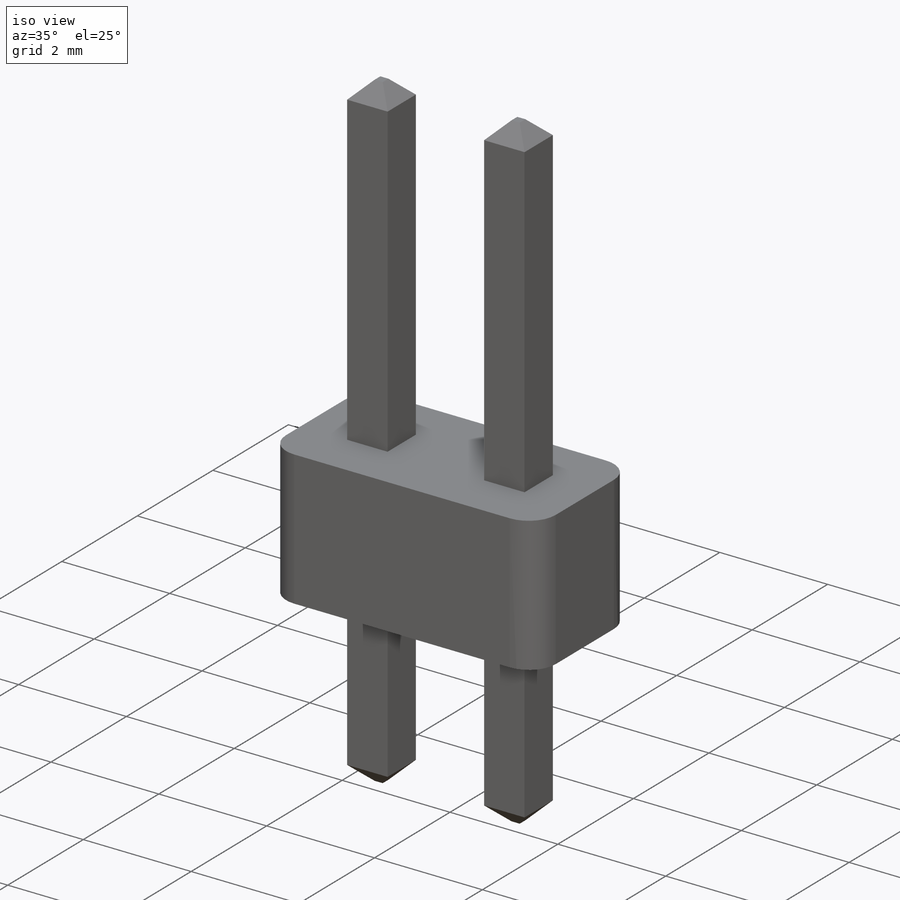
[diagram: iso view]
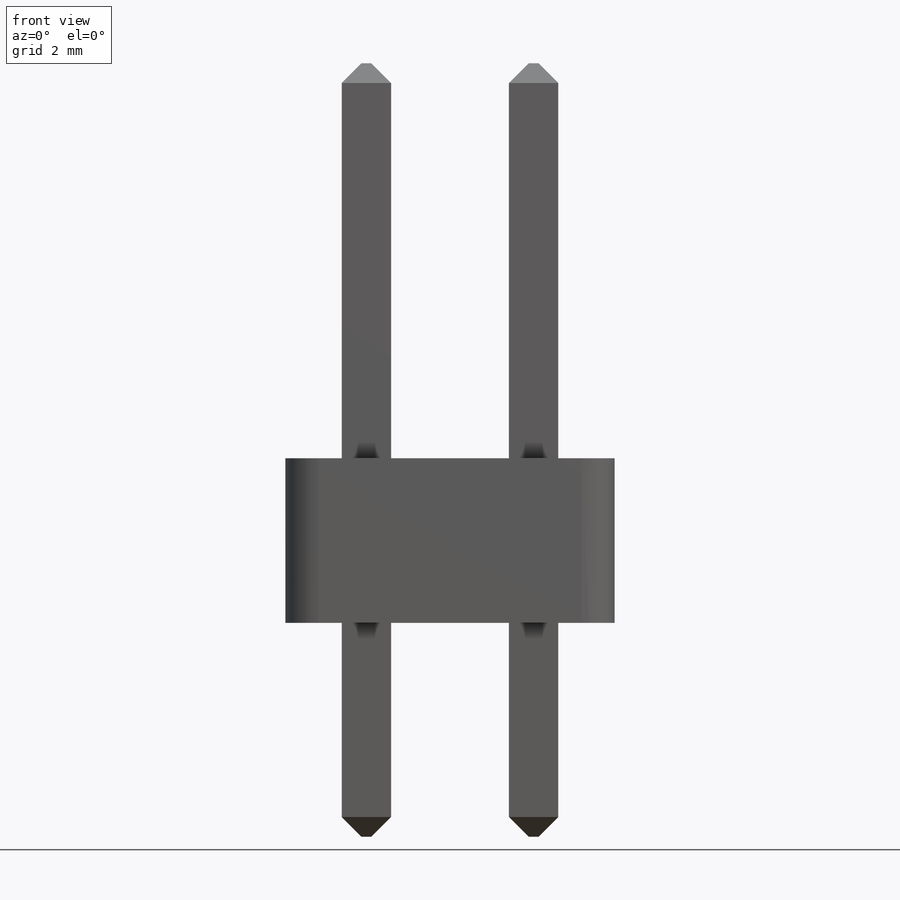
[diagram: front view]
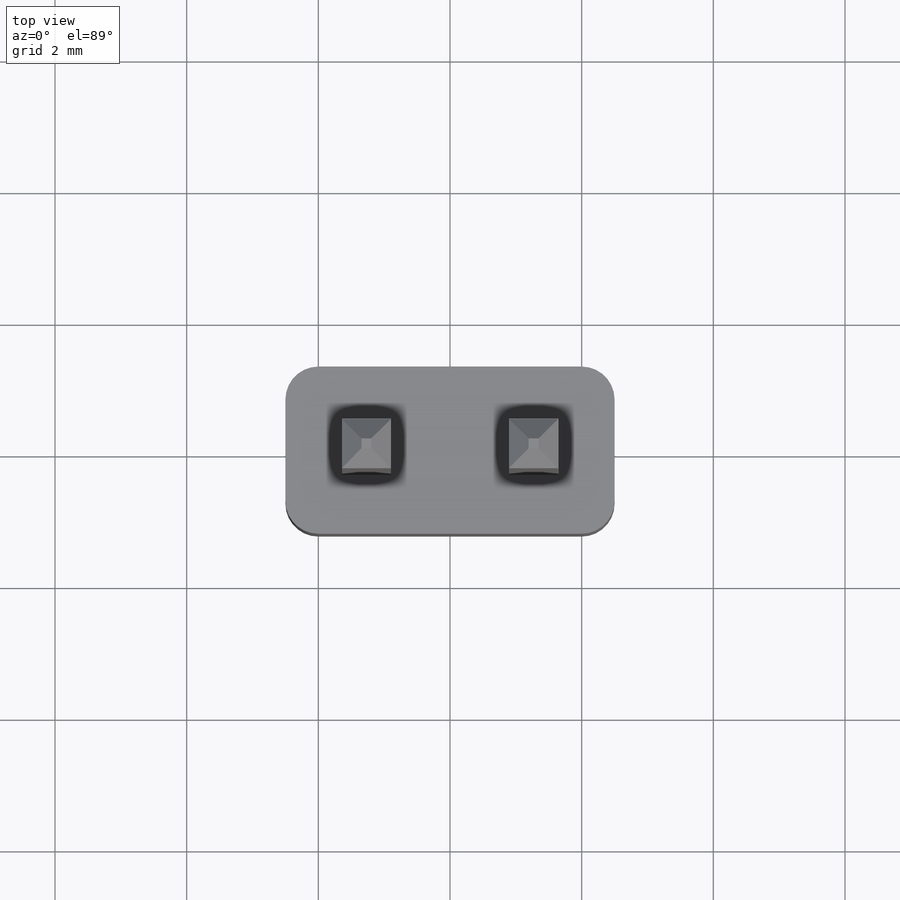
[diagram: top view]
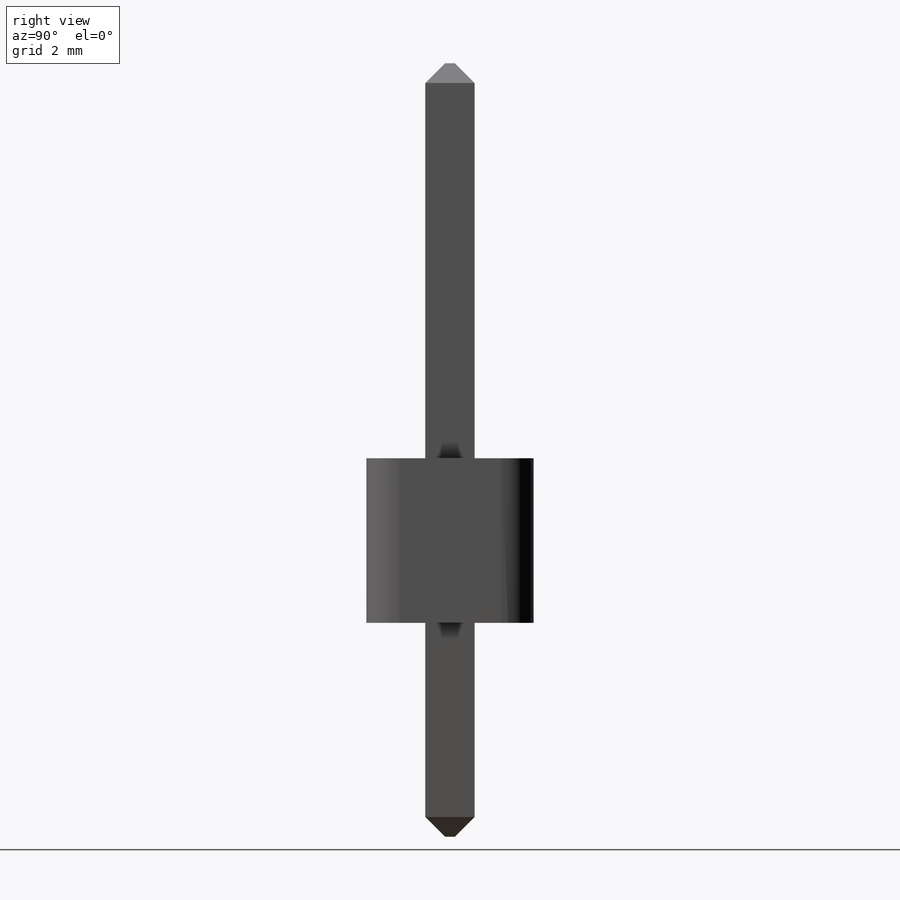
[diagram: right view]
SOLIDWORKS PART (.sldprt)
format: sldprt  version: not decoded by parser v0  size: 188,416 bytes
history: native  units: mm
features: plane x2, sketch x2, extrude x2, material x1, chamfer x1 (+11 scaffold rows collapsed)
feature tree (19):
  scaffold x11  (default folders/planes/origin — collapsed)
  material  "Matériau <non spécifié>"
  plane  "Plane1"
  sketch  "Sketch1"  dims[D5=0.5mm D1=5.0mm D2=2.54mm D3=2.5mm D4=1.27mm]
  extrude  "Boss-Extrude1"  Depth=2.5mm
  plane  "Plane2"
  sketch  "Sketch2"  dims[D1=2.54mm D2=0.75mm D3=1.27mm]
  extrude  "Boss-Extrude2"  Depth=8.5mm
  chamfer  "Chamfer1"  Distance=0.3mm Angle=45deg
decode coverage: 5 of 5 modeling features carry decoded parameters
note: suppression state not decoded; provenance and decode notes live in map.json
